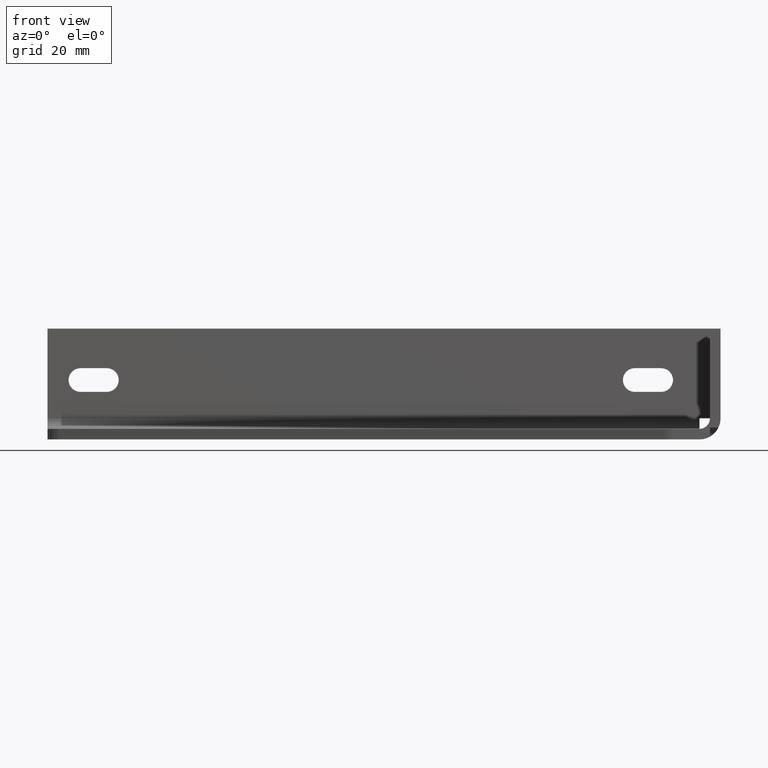
[diagram: clean part render]
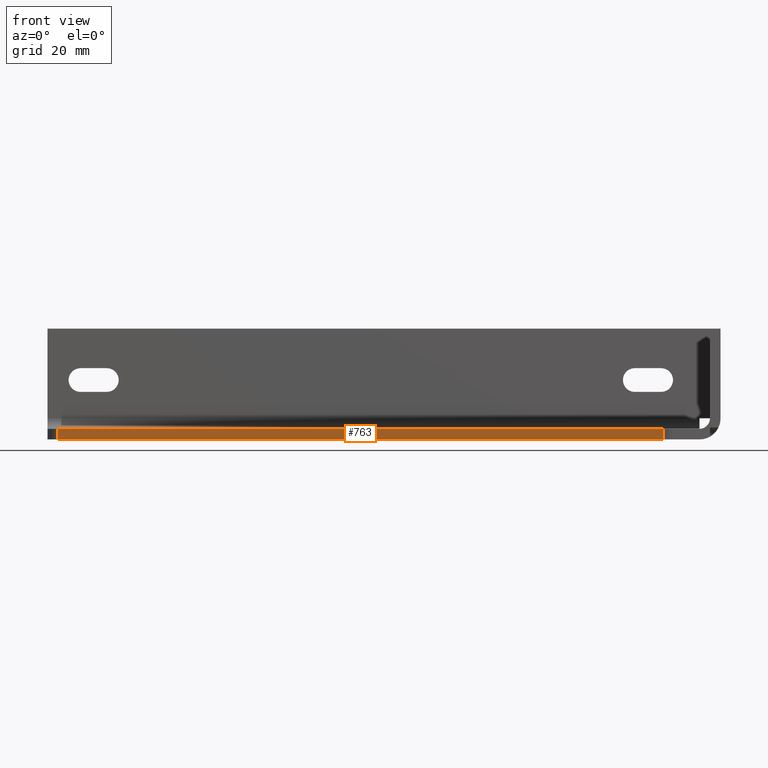
[diagram: same view with one face highlighted and labeled with its STEP entity id]
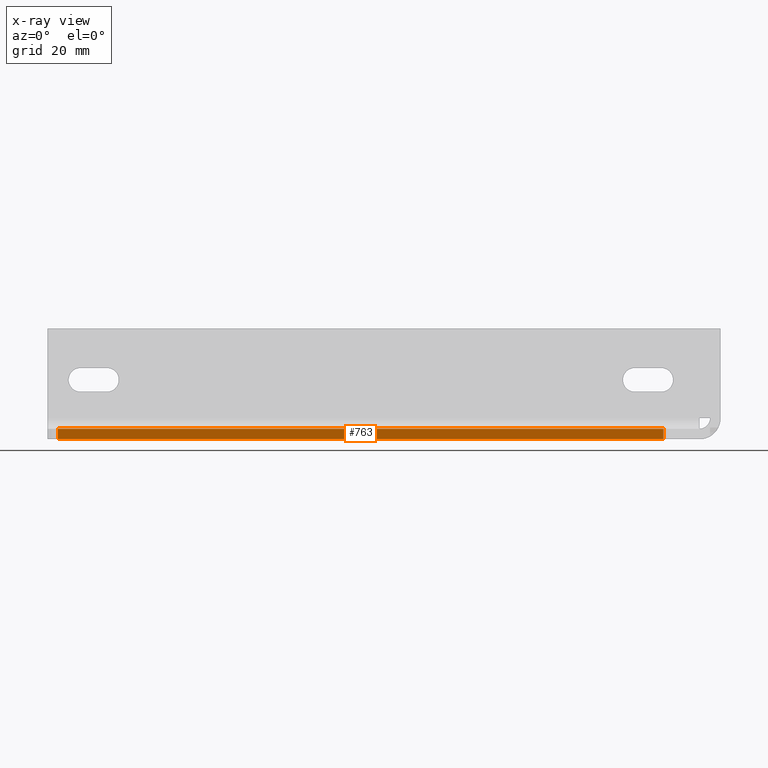
[diagram: x-ray of the same camera — body ghosted, the highlighted face saturated]
A machine part, front view. The second image highlights one B-rep face of the part: STEP entity #763.
The next image is the same camera in x-ray: the body ghosted, the highlighted face saturated — about 0% of this face is hidden behind the body in this view.
In plain terms, the highlighted planar face has unit normal (-0.3366, -0.9417, 0).
Its self-contained STEP definition (entity closure, byte-faithful):
#108=FACE_OUTER_BOUND('',#157,.T.);
#157=EDGE_LOOP('',(#687,#688,#689,#690));
#185=LINE('',#1154,#261);
#189=LINE('',#1163,#265);
#194=LINE('',#1176,#270);
#234=LINE('',#1282,#310);
#261=VECTOR('',#918,4.);
#265=VECTOR('',#928,243.600984886949);
#270=VECTOR('',#939,4.);
#310=VECTOR('',#1055,243.600984886949);
#340=VERTEX_POINT('',#1151);
#341=VERTEX_POINT('',#1153);
#343=VERTEX_POINT('',#1162);
#347=VERTEX_POINT('',#1172);
#417=EDGE_CURVE('',#340,#341,#185,.T.);
#422=EDGE_CURVE('',#343,#341,#189,.T.);
#429=EDGE_CURVE('',#343,#347,#194,.T.);
#483=EDGE_CURVE('',#340,#347,#234,.T.);
#687=ORIENTED_EDGE('',*,*,#417,.F.);
#688=ORIENTED_EDGE('',*,*,#483,.T.);
#689=ORIENTED_EDGE('',*,*,#429,.F.);
#690=ORIENTED_EDGE('',*,*,#422,.T.);
#722=PLANE('',#836);
#763=ADVANCED_FACE('',(#108),#722,.T.);
#836=AXIS2_PLACEMENT_3D('',#1281,#1053,#1054);
#918=DIRECTION('',(0.,0.,-1.));
#928=DIRECTION('',(0.941651220677272,-0.336590223561238,0.));
#939=DIRECTION('',(0.,0.,1.));
#1053=DIRECTION('center_axis',(-0.336590223561238,-0.941651220677272,0.));
#1054=DIRECTION('ref_axis',(0.,0.,-1.));
#1055=DIRECTION('',(-0.941651220677272,0.336590223561238,0.));
#1151=CARTESIAN_POINT('',(-21.632376564386,-99.4165122067727,-18.5));
#1153=CARTESIAN_POINT('',(-21.632376564386,-99.4165122067727,-22.5));
#1154=CARTESIAN_POINT('',(-21.632376564386,-99.4165122067727,-22.5));
#1162=CARTESIAN_POINT('',(-251.019541341367,-17.4228022439367,-22.5));
#1163=CARTESIAN_POINT('',(-255.,-16.,-22.5));
#1172=CARTESIAN_POINT('',(-251.019541341367,-17.4228022439367,-18.5));
#1176=CARTESIAN_POINT('',(-251.019541341367,-17.4228022439367,-22.5));
#1281=CARTESIAN_POINT('Origin',(-20.,-100.,-22.5));
#1282=CARTESIAN_POINT('',(-255.,-16.,-18.5));